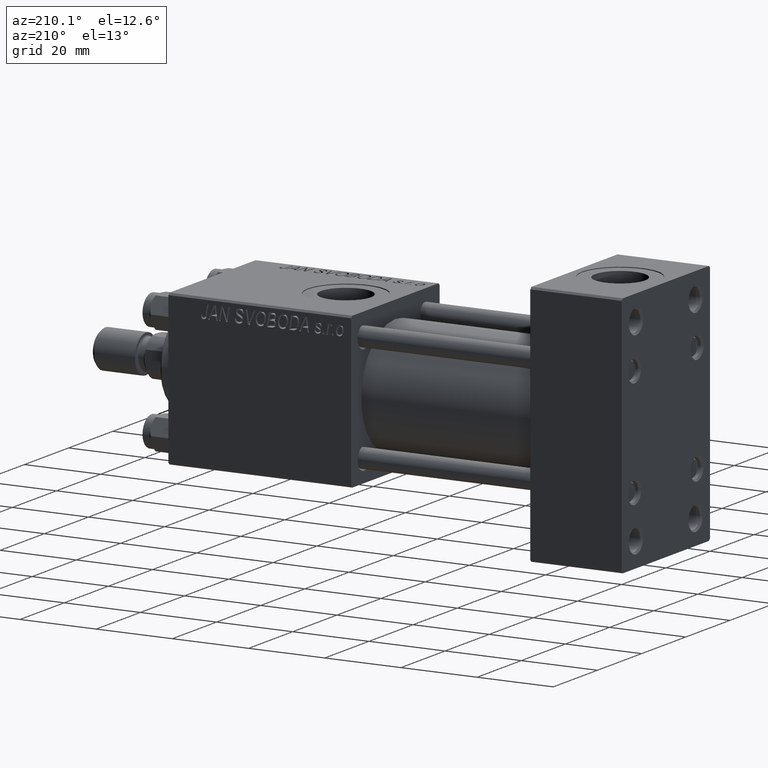
[diagram: clean part render]
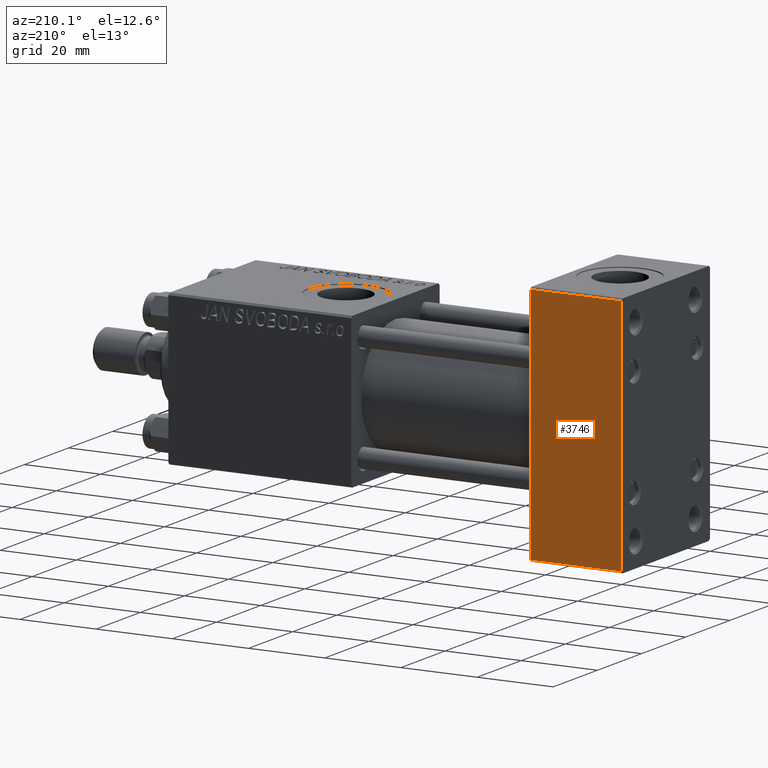
[diagram: same view with one face highlighted and labeled with its STEP entity id]
A machine part, auxiliary view. The second image highlights one B-rep face of the part: STEP entity #3746.
In plain terms, the highlighted planar face has unit normal (0, 1, 0).
Its self-contained STEP definition (entity closure, byte-faithful):
#2446 = LINE ( 'NONE', #17453, #33654 ) ;
#3147 = ORIENTED_EDGE ( 'NONE', *, *, #38448, .T. ) ;
#3746 = ADVANCED_FACE ( 'NONE', ( #20850 ), #20103, .T. ) ;
#4574 = DIRECTION ( 'NONE',  ( -0.000000000000000000, 1.000000000000000000, 0.000000000000000000 ) ) ;
#8377 = CARTESIAN_POINT ( 'NONE',  ( 24.00000000000000000, 19.99999999999999645, -31.50000000000000000 ) ) ;
#11896 = LINE ( 'NONE', #16220, #21765 ) ;
#14018 = EDGE_CURVE ( 'NONE', #31320, #22314, #27961, .T. ) ;
#16220 = CARTESIAN_POINT ( 'NONE',  ( 0.000000000000000000, 19.99999999999999645, 32.00000000000000000 ) ) ;
#17338 = DIRECTION ( 'NONE',  ( 1.000000000000000000, 0.000000000000000000, 0.000000000000000000 ) ) ;
#17453 = CARTESIAN_POINT ( 'NONE',  ( 24.00000000000000000, 19.99999999999999645, 32.00000000000000000 ) ) ;
#19153 = EDGE_CURVE ( 'NONE', #28983, #39586, #21411, .T. ) ;
#20103 = PLANE ( 'NONE',  #39945 ) ;
#20715 = ORIENTED_EDGE ( 'NONE', *, *, #19153, .T. ) ;
#20850 = FACE_OUTER_BOUND ( 'NONE', #34778, .T. ) ;
#21411 = LINE ( 'NONE', #29034, #46161 ) ;
#21765 = VECTOR ( 'NONE', #31249, 1000.000000000000000 ) ;
#22314 = VERTEX_POINT ( 'NONE', #39729 ) ;
#22460 = CARTESIAN_POINT ( 'NONE',  ( 0.000000000000000000, 19.99999999999999645, 31.50000000000000000 ) ) ;
#24836 = DIRECTION ( 'NONE',  ( 0.000000000000000000, 0.000000000000000000, -1.000000000000000000 ) ) ;
#27961 = LINE ( 'NONE', #8377, #41072 ) ;
#28238 = CARTESIAN_POINT ( 'NONE',  ( 24.00000000000000000, 19.99999999999999645, 32.00000000000000000 ) ) ;
#28983 = VERTEX_POINT ( 'NONE', #22460 ) ;
#29034 = CARTESIAN_POINT ( 'NONE',  ( 24.00000000000000000, 19.99999999999999645, 31.50000000000000000 ) ) ;
#31249 = DIRECTION ( 'NONE',  ( 0.000000000000000000, 0.000000000000000000, -1.000000000000000000 ) ) ;
#31320 = VERTEX_POINT ( 'NONE', #46729 ) ;
#33654 = VECTOR ( 'NONE', #24836, 1000.000000000000000 ) ;
#34778 = EDGE_LOOP ( 'NONE', ( #3147, #38581, #35161, #20715 ) ) ;
#35161 = ORIENTED_EDGE ( 'NONE', *, *, #44184, .F. ) ;
#36396 = DIRECTION ( 'NONE',  ( 0.000000000000000000, -0.000000000000000000, 1.000000000000000000 ) ) ;
#38448 = EDGE_CURVE ( 'NONE', #39586, #31320, #2446, .T. ) ;
#38581 = ORIENTED_EDGE ( 'NONE', *, *, #14018, .T. ) ;
#39175 = DIRECTION ( 'NONE',  ( -1.000000000000000000, 0.000000000000000000, 0.000000000000000000 ) ) ;
#39586 = VERTEX_POINT ( 'NONE', #45228 ) ;
#39729 = CARTESIAN_POINT ( 'NONE',  ( 0.000000000000000000, 19.99999999999999645, -31.50000000000000000 ) ) ;
#39945 = AXIS2_PLACEMENT_3D ( 'NONE', #28238, #4574, #36396 ) ;
#41072 = VECTOR ( 'NONE', #39175, 1000.000000000000000 ) ;
#44184 = EDGE_CURVE ( 'NONE', #28983, #22314, #11896, .T. ) ;
#45228 = CARTESIAN_POINT ( 'NONE',  ( 24.00000000000000000, 19.99999999999999645, 31.50000000000000000 ) ) ;
#46161 = VECTOR ( 'NONE', #17338, 1000.000000000000000 ) ;
#46729 = CARTESIAN_POINT ( 'NONE',  ( 24.00000000000000000, 19.99999999999999645, -31.50000000000000000 ) ) ;